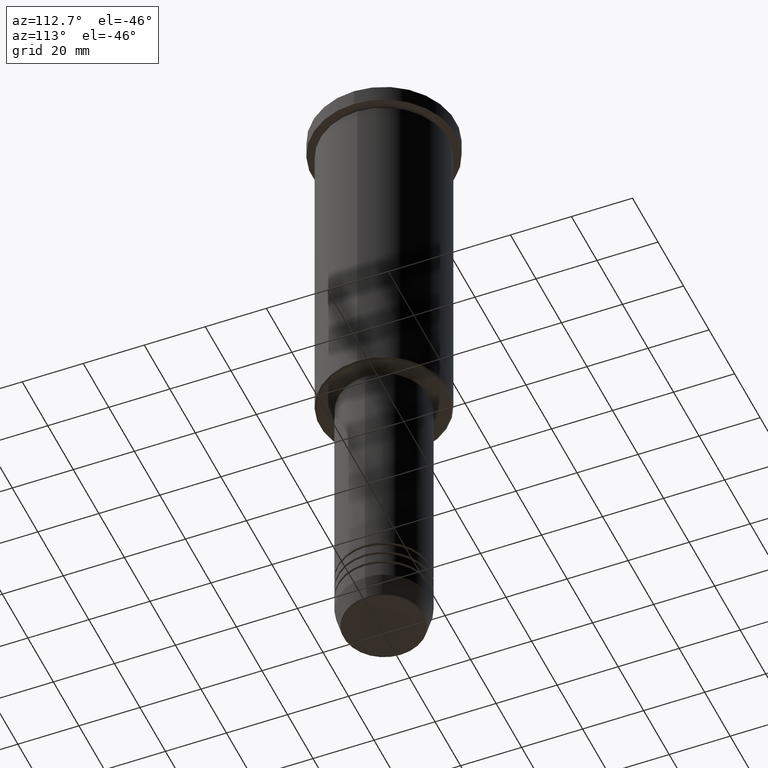
[diagram: clean part render]
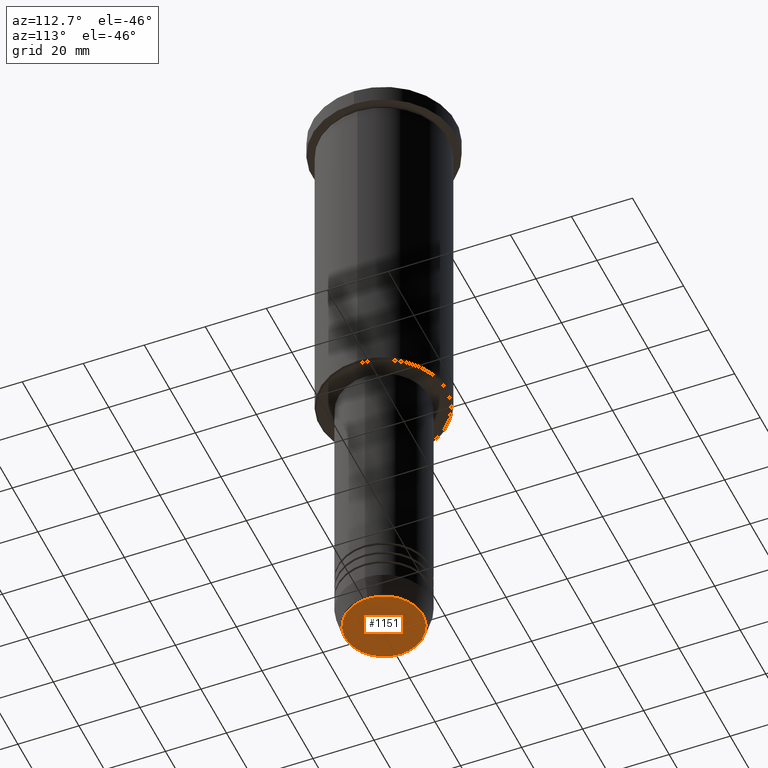
[diagram: same view with one face highlighted and labeled with its STEP entity id]
A machine part, auxiliary view. The second image highlights one B-rep face of the part: STEP entity #1151.
In plain terms, the highlighted planar face has unit normal (0, -0, 1).
Its self-contained STEP definition (entity closure, byte-faithful):
#14 = CIRCLE ( 'NONE', #203, 12.74069215899265828 ) ;
#150 = EDGE_CURVE ( 'NONE', #592, #1037, #14, .T. ) ;
#192 = FACE_OUTER_BOUND ( 'NONE', #1128, .T. ) ;
#203 = AXIS2_PLACEMENT_3D ( 'NONE', #700, #621, #709 ) ;
#254 = EDGE_CURVE ( 'NONE', #1037, #592, #1157, .T. ) ;
#358 = AXIS2_PLACEMENT_3D ( 'NONE', #462, #637, #749 ) ;
#462 = CARTESIAN_POINT ( 'NONE',  ( 0.000000000000000000, 0.000000000000000000, -211.0000000000000284 ) ) ;
#532 = ORIENTED_EDGE ( 'NONE', *, *, #254, .T. ) ;
#592 = VERTEX_POINT ( 'NONE', #957 ) ;
#621 = DIRECTION ( 'NONE',  ( 0.000000000000000000, 0.000000000000000000, -1.000000000000000000 ) ) ;
#637 = DIRECTION ( 'NONE',  ( 0.000000000000000000, -0.000000000000000000, 1.000000000000000000 ) ) ;
#674 = CARTESIAN_POINT ( 'NONE',  ( -12.74069215899265828, 1.589857736427681035E-15, -211.0000000000000284 ) ) ;
#700 = CARTESIAN_POINT ( 'NONE',  ( 0.000000000000000000, 0.000000000000000000, -211.0000000000000284 ) ) ;
#709 = DIRECTION ( 'NONE',  ( 1.000000000000000000, 0.000000000000000000, 0.000000000000000000 ) ) ;
#749 = DIRECTION ( 'NONE',  ( 1.000000000000000000, 0.000000000000000000, 0.000000000000000000 ) ) ;
#812 = CARTESIAN_POINT ( 'NONE',  ( 0.000000000000000000, 0.000000000000000000, -211.0000000000000284 ) ) ;
#813 = ORIENTED_EDGE ( 'NONE', *, *, #150, .T. ) ;
#816 = DIRECTION ( 'NONE',  ( 1.000000000000000000, 0.000000000000000000, 0.000000000000000000 ) ) ;
#923 = PLANE ( 'NONE',  #358 ) ;
#957 = CARTESIAN_POINT ( 'NONE',  ( 12.74069215899265828, 0.000000000000000000, -211.0000000000000284 ) ) ;
#1006 = DIRECTION ( 'NONE',  ( 0.000000000000000000, 0.000000000000000000, -1.000000000000000000 ) ) ;
#1037 = VERTEX_POINT ( 'NONE', #674 ) ;
#1098 = AXIS2_PLACEMENT_3D ( 'NONE', #812, #1006, #816 ) ;
#1128 = EDGE_LOOP ( 'NONE', ( #813, #532 ) ) ;
#1151 = ADVANCED_FACE ( 'NONE', ( #192 ), #923, .F. ) ;
#1157 = CIRCLE ( 'NONE', #1098, 12.74069215899265828 ) ;